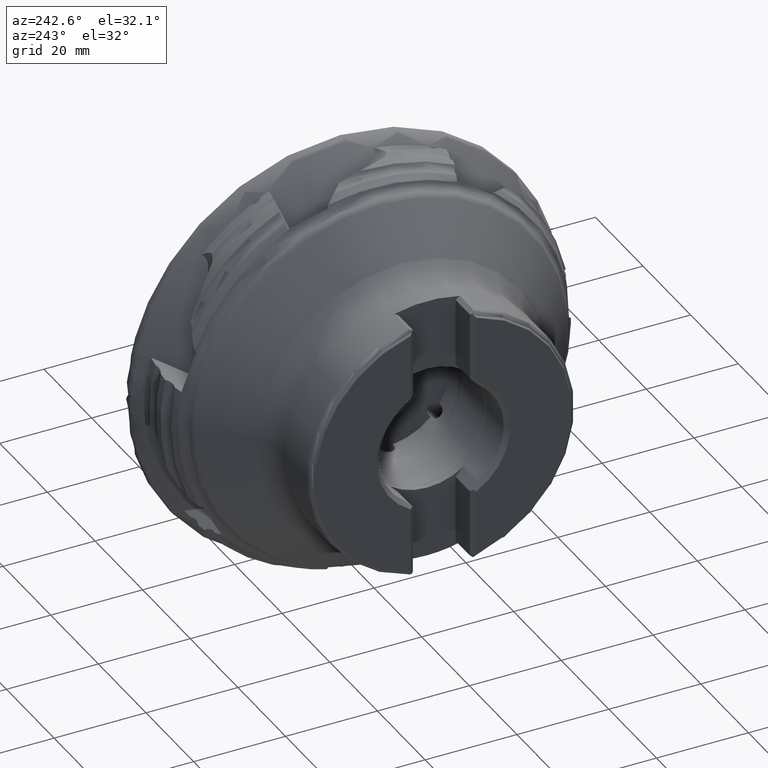
[diagram: clean part render]
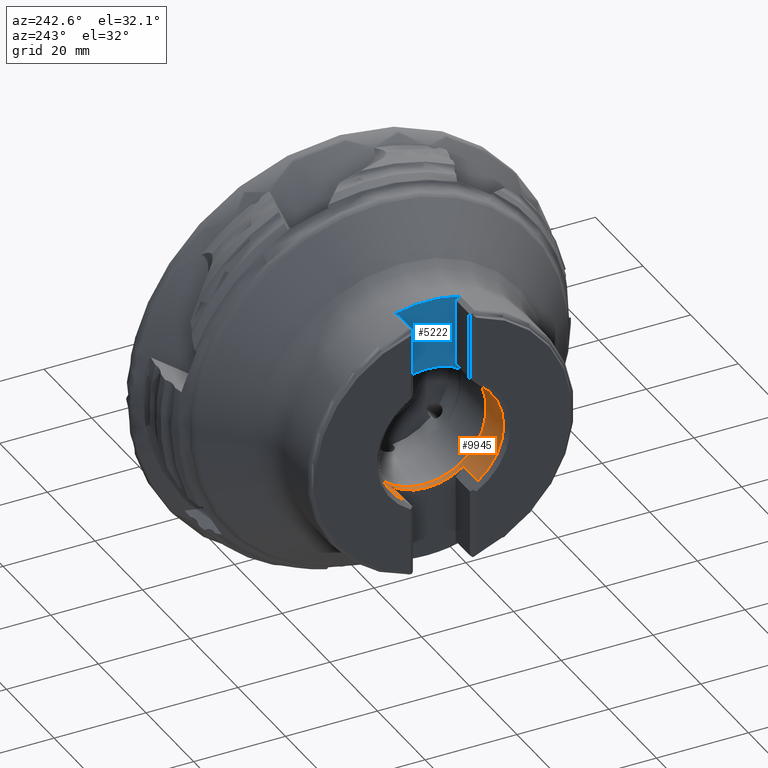
[diagram: same view with the hole feature highlighted: cylindrical wall and planar end face, labeled with their STEP entity ids]
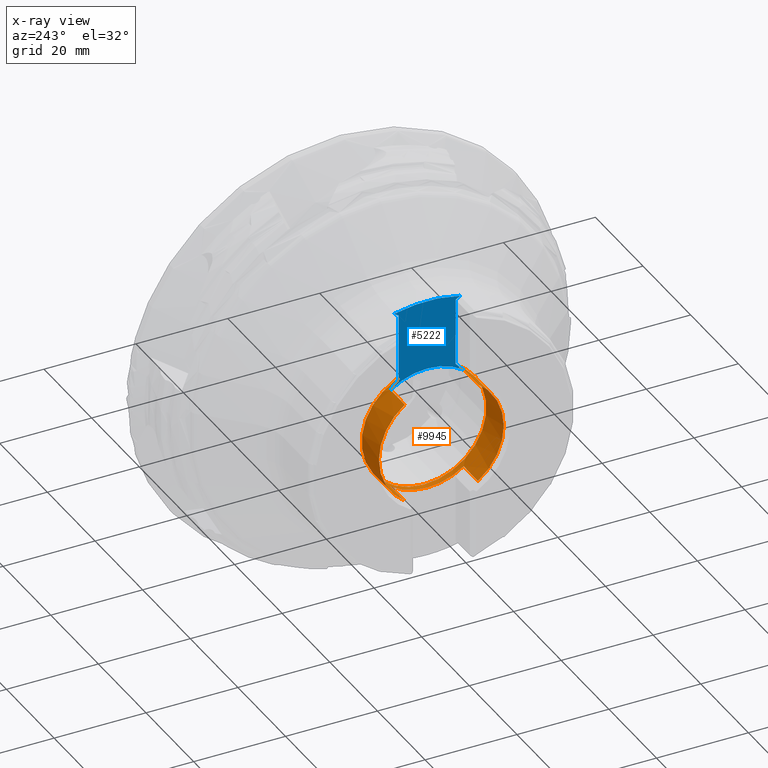
[diagram: x-ray of the same camera — body ghosted, the hole faces saturated]
A machine part, auxiliary view. The highlighted faces form one hole feature of diameter 27.15 mm: the cylindrical wall (entity #9945, orange) and its adjacent planar end face (entity #5222, blue) — they share a circular edge in the B-rep.
The next image is the same camera in x-ray (body ghosted, the hole faces saturated) — the bore reads through the body.
Wall:
#107 = DIRECTION ( 'NONE',  ( 0.0000000000000000000, 0.0000000000000000000, -1.000000000000000000 ) ) ;
#609 = CARTESIAN_POINT ( 'NONE',  ( -48.24999999999998600, 7.956204235286510800, 10.99906537694948300 ) ) ;
#644 = DIRECTION ( 'NONE',  ( 0.0000000000000000000, 0.0000000000000000000, -1.000000000000000000 ) ) ;
#766 = CARTESIAN_POINT ( 'NONE',  ( -42.24999999999998600, -7.956204235286501900, -10.99906537694948700 ) ) ;
#770 = EDGE_LOOP ( 'NONE', ( #6466, #6111, #1613, #7106, #3730, #2713, #6124, #3790 ) ) ;
#846 = FACE_OUTER_BOUND ( 'NONE', #770, .T. ) ;
#880 = CARTESIAN_POINT ( 'NONE',  ( -42.24999999999998600, -7.956204235286496600, 10.99906537694949200 ) ) ;
#911 = DIRECTION ( 'NONE',  ( 1.000000000000000000, -0.0000000000000000000, -0.0000000000000000000 ) ) ;
#1316 = AXIS2_PLACEMENT_3D ( 'NONE', #7592, #2828, #8384 ) ;
#1325 = CARTESIAN_POINT ( 'NONE',  ( -48.24999999999998600, -7.956204235286503700, -10.99906537694948700 ) ) ;
#1351 = VECTOR ( 'NONE', #4788, 1000.000000000000000 ) ;
#1359 = EDGE_CURVE ( 'NONE', #4377, #8827, #3307, .T. ) ;
#1525 = AXIS2_PLACEMENT_3D ( 'NONE', #3835, #9359, #4623 ) ;
#1613 = ORIENTED_EDGE ( 'NONE', *, *, #3371, .T. ) ;
#1872 = EDGE_CURVE ( 'NONE', #8790, #6877, #3407, .T. ) ;
#2083 = DIRECTION ( 'NONE',  ( 1.000000000000000000, -0.0000000000000000000, -0.0000000000000000000 ) ) ;
#2113 = VERTEX_POINT ( 'NONE', #880 ) ;
#2285 = CARTESIAN_POINT ( 'NONE',  ( -40.94999999999998900, 0.0000000000000000000, 0.0000000000000000000 ) ) ;
#2295 = CARTESIAN_POINT ( 'NONE',  ( -48.24999999999998600, 7.956204235286510800, -10.99906537694948300 ) ) ;
#2325 = CARTESIAN_POINT ( 'NONE',  ( -48.24999999999998600, -7.956204235286500100, 10.99906537694948800 ) ) ;
#2584 = CARTESIAN_POINT ( 'NONE',  ( -6.499539914493643200E-030, -7.956204235286489500, -10.99906537694949700 ) ) ;
#2713 = ORIENTED_EDGE ( 'NONE', *, *, #6534, .T. ) ;
#2828 = DIRECTION ( 'NONE',  ( 1.000000000000000000, -0.0000000000000000000, -0.0000000000000000000 ) ) ;
#3054 = DIRECTION ( 'NONE',  ( 0.0000000000000000000, 0.0000000000000000000, -1.000000000000000000 ) ) ;
#3072 = CIRCLE ( 'NONE', #7360, 13.57499999999999400 ) ;
#3198 = LINE ( 'NONE', #7978, #1351 ) ;
#3302 = AXIS2_PLACEMENT_3D ( 'NONE', #2285, #7843, #3054 ) ;
#3307 = CIRCLE ( 'NONE', #1525, 13.57499999999999400 ) ;
#3314 = VECTOR ( 'NONE', #8915, 1000.000000000000000 ) ;
#3371 = EDGE_CURVE ( 'NONE', #2113, #3554, #3935, .T. ) ;
#3407 = CIRCLE ( 'NONE', #1316, 13.57499999999999400 ) ;
#3554 = VERTEX_POINT ( 'NONE', #7534 ) ;
#3683 = EDGE_CURVE ( 'NONE', #7518, #7518, #6890, .T. ) ;
#3730 = ORIENTED_EDGE ( 'NONE', *, *, #1872, .F. ) ;
#3790 = ORIENTED_EDGE ( 'NONE', *, *, #8613, .T. ) ;
#3835 = CARTESIAN_POINT ( 'NONE',  ( -42.24999999999998600, 0.0000000000000000000, 0.0000000000000000000 ) ) ;
#3935 = CIRCLE ( 'NONE', #5082, 13.57499999999999400 ) ;
#3956 = CARTESIAN_POINT ( 'NONE',  ( -40.94999999999998900, 0.0000000000000000000, -13.57499999999999600 ) ) ;
#4009 = AXIS2_PLACEMENT_3D ( 'NONE', #4122, #911, #8867 ) ;
#4115 = ORIENTED_EDGE ( 'NONE', *, *, #3683, .T. ) ;
#4122 = CARTESIAN_POINT ( 'NONE',  ( 0.0000000000000000000, 0.0000000000000000000, 0.0000000000000000000 ) ) ;
#4377 = VERTEX_POINT ( 'NONE', #5781 ) ;
#4623 = DIRECTION ( 'NONE',  ( 0.0000000000000000000, 0.0000000000000000000, -1.000000000000000000 ) ) ;
#4681 = VECTOR ( 'NONE', #7251, 1000.000000000000000 ) ;
#4788 = DIRECTION ( 'NONE',  ( 1.000000000000000000, -0.0000000000000000000, -0.0000000000000000000 ) ) ;
#4792 = FACE_OUTER_BOUND ( 'NONE', #5577, .T. ) ;
#4829 = DIRECTION ( 'NONE',  ( -1.000000000000000000, -0.0000000000000000000, -0.0000000000000000000 ) ) ;
#5082 = AXIS2_PLACEMENT_3D ( 'NONE', #9577, #4829, #107 ) ;
#5381 = DIRECTION ( 'NONE',  ( 1.000000000000000000, -0.0000000000000000000, -0.0000000000000000000 ) ) ;
#5577 = EDGE_LOOP ( 'NONE', ( #4115 ) ) ;
#5781 = CARTESIAN_POINT ( 'NONE',  ( -42.24999999999998600, 7.956204235286507200, -10.99906537694948300 ) ) ;
#6111 = ORIENTED_EDGE ( 'NONE', *, *, #6995, .T. ) ;
#6124 = ORIENTED_EDGE ( 'NONE', *, *, #1359, .T. ) ;
#6293 = CARTESIAN_POINT ( 'NONE',  ( -5.261532311732945000E-030, -7.956204235286484100, 10.99906537694949700 ) ) ;
#6466 = ORIENTED_EDGE ( 'NONE', *, *, #7111, .F. ) ;
#6534 = EDGE_CURVE ( 'NONE', #8790, #4377, #3198, .T. ) ;
#6539 = LINE ( 'NONE', #9627, #4681 ) ;
#6870 = VERTEX_POINT ( 'NONE', #1325 ) ;
#6877 = VERTEX_POINT ( 'NONE', #609 ) ;
#6890 = CIRCLE ( 'NONE', #3302, 13.57499999999999600 ) ;
#6995 = EDGE_CURVE ( 'NONE', #8810, #2113, #7294, .T. ) ;
#7060 = VECTOR ( 'NONE', #2083, 1000.000000000000000 ) ;
#7106 = ORIENTED_EDGE ( 'NONE', *, *, #9579, .T. ) ;
#7111 = EDGE_CURVE ( 'NONE', #8810, #6870, #3072, .T. ) ;
#7251 = DIRECTION ( 'NONE',  ( -1.000000000000000000, 0.0000000000000000000, 0.0000000000000000000 ) ) ;
#7294 = LINE ( 'NONE', #6293, #7060 ) ;
#7360 = AXIS2_PLACEMENT_3D ( 'NONE', #10140, #5381, #644 ) ;
#7518 = VERTEX_POINT ( 'NONE', #3956 ) ;
#7534 = CARTESIAN_POINT ( 'NONE',  ( -42.24999999999998600, 7.956204235286507200, 10.99906537694948300 ) ) ;
#7592 = CARTESIAN_POINT ( 'NONE',  ( -48.24999999999998600, 0.0000000000000000000, 0.0000000000000000000 ) ) ;
#7843 = DIRECTION ( 'NONE',  ( 1.000000000000000000, -0.0000000000000000000, -0.0000000000000000000 ) ) ;
#7978 = CARTESIAN_POINT ( 'NONE',  ( 0.0000000000000000000, 7.956204235286507200, -10.99906537694948300 ) ) ;
#8384 = DIRECTION ( 'NONE',  ( 0.0000000000000000000, 0.0000000000000000000, -1.000000000000000000 ) ) ;
#8613 = EDGE_CURVE ( 'NONE', #8827, #6870, #9644, .T. ) ;
#8771 = CYLINDRICAL_SURFACE ( 'NONE', #4009, 13.57499999999999400 ) ;
#8790 = VERTEX_POINT ( 'NONE', #2295 ) ;
#8810 = VERTEX_POINT ( 'NONE', #2325 ) ;
#8827 = VERTEX_POINT ( 'NONE', #766 ) ;
#8867 = DIRECTION ( 'NONE',  ( 0.0000000000000000000, 0.0000000000000000000, -1.000000000000000000 ) ) ;
#8915 = DIRECTION ( 'NONE',  ( -1.000000000000000000, 0.0000000000000000000, 0.0000000000000000000 ) ) ;
#9359 = DIRECTION ( 'NONE',  ( -1.000000000000000000, -0.0000000000000000000, -0.0000000000000000000 ) ) ;
#9577 = CARTESIAN_POINT ( 'NONE',  ( -42.24999999999998600, 0.0000000000000000000, 0.0000000000000000000 ) ) ;
#9579 = EDGE_CURVE ( 'NONE', #3554, #6877, #6539, .T. ) ;
#9627 = CARTESIAN_POINT ( 'NONE',  ( 0.0000000000000000000, 7.956204235286507200, 10.99906537694948300 ) ) ;
#9644 = LINE ( 'NONE', #2584, #3314 ) ;
#9945 = ADVANCED_FACE ( 'NONE', ( #846, #4792 ), #8771, .F. ) ;
#10140 = CARTESIAN_POINT ( 'NONE',  ( -48.24999999999998600, 0.0000000000000000000, 0.0000000000000000000 ) ) ;
End face:
#87 = ORIENTED_EDGE ( 'NONE', *, *, #4147, .T. ) ;
#107 = DIRECTION ( 'NONE',  ( 0.0000000000000000000, 0.0000000000000000000, -1.000000000000000000 ) ) ;
#123 = LINE ( 'NONE', #3905, #8277 ) ;
#135 = VECTOR ( 'NONE', #1205, 1000.000000000000000 ) ;
#181 = ORIENTED_EDGE ( 'NONE', *, *, #1099, .T. ) ;
#225 = ORIENTED_EDGE ( 'NONE', *, *, #1297, .T. ) ;
#243 = LINE ( 'NONE', #873, #8430 ) ;
#251 = FACE_OUTER_BOUND ( 'NONE', #7440, .T. ) ;
#633 = VECTOR ( 'NONE', #4098, 1000.000000000000000 ) ;
#804 = CARTESIAN_POINT ( 'NONE',  ( -42.24999999999998600, 6.199999999999994000, -35.00000000000000000 ) ) ;
#873 = CARTESIAN_POINT ( 'NONE',  ( -42.24999999999998600, 30.97830975848955900, 3.662544862966750500 ) ) ;
#880 = CARTESIAN_POINT ( 'NONE',  ( -42.24999999999998600, -7.956204235286496600, 10.99906537694949200 ) ) ;
#1099 = EDGE_CURVE ( 'NONE', #2113, #2802, #123, .T. ) ;
#1159 = CARTESIAN_POINT ( 'NONE',  ( -42.24999999999998600, -6.200000000000003700, 12.87078501993768700 ) ) ;
#1205 = DIRECTION ( 'NONE',  ( -0.0000000000000000000, -0.0000000000000000000, 1.000000000000000000 ) ) ;
#1215 = ORIENTED_EDGE ( 'NONE', *, *, #5859, .T. ) ;
#1297 = EDGE_CURVE ( 'NONE', #10158, #7201, #9396, .T. ) ;
#1318 = CARTESIAN_POINT ( 'NONE',  ( -42.24999999999998600, 6.199999999999994000, 12.87078501993769900 ) ) ;
#1471 = CARTESIAN_POINT ( 'NONE',  ( -42.24999999999998600, 30.08690900907819100, -12.58730003887088800 ) ) ;
#1608 = DIRECTION ( 'NONE',  ( 1.000000000000000000, 0.0000000000000000000, 0.0000000000000000000 ) ) ;
#1758 = CARTESIAN_POINT ( 'NONE',  ( -42.24999999999998600, -6.200000000000003700, 27.48962812295473100 ) ) ;
#2074 = EDGE_CURVE ( 'NONE', #7230, #10158, #2676, .T. ) ;
#2108 = CARTESIAN_POINT ( 'NONE',  ( -42.24999999999998600, 7.157023391835952700, 28.10297166081752400 ) ) ;
#2113 = VERTEX_POINT ( 'NONE', #880 ) ;
#2191 = AXIS2_PLACEMENT_3D ( 'NONE', #7213, #2470, #8018 ) ;
#2314 = VECTOR ( 'NONE', #7011, 1000.000000000000000 ) ;
#2323 = AXIS2_PLACEMENT_3D ( 'NONE', #804, #1608, #7140 ) ;
#2470 = DIRECTION ( 'NONE',  ( -1.000000000000000000, -0.0000000000000000000, -0.0000000000000000000 ) ) ;
#2676 = CIRCLE ( 'NONE', #2191, 28.99999999999999600 ) ;
#2786 = CARTESIAN_POINT ( 'NONE',  ( -42.24999999999998600, -6.200000000000003700, -35.00000000000000000 ) ) ;
#2802 = VERTEX_POINT ( 'NONE', #1159 ) ;
#3202 = ORIENTED_EDGE ( 'NONE', *, *, #3371, .F. ) ;
#3371 = EDGE_CURVE ( 'NONE', #2113, #3554, #3935, .T. ) ;
#3453 = VERTEX_POINT ( 'NONE', #1758 ) ;
#3554 = VERTEX_POINT ( 'NONE', #7534 ) ;
#3724 = CARTESIAN_POINT ( 'NONE',  ( -42.24999999999998600, -22.18856994132706400, 9.295771973549367600 ) ) ;
#3905 = CARTESIAN_POINT ( 'NONE',  ( -42.24999999999998600, -24.28133303195034600, -6.399858751053911600 ) ) ;
#3935 = CIRCLE ( 'NONE', #5082, 13.57499999999999400 ) ;
#4098 = DIRECTION ( 'NONE',  ( -0.0000000000000000000, -0.0000000000000000000, 1.000000000000000000 ) ) ;
#4147 = EDGE_CURVE ( 'NONE', #5074, #3554, #8639, .T. ) ;
#4582 = LINE ( 'NONE', #9594, #633 ) ;
#4829 = DIRECTION ( 'NONE',  ( -1.000000000000000000, -0.0000000000000000000, -0.0000000000000000000 ) ) ;
#4846 = ORIENTED_EDGE ( 'NONE', *, *, #7631, .T. ) ;
#4850 = CARTESIAN_POINT ( 'NONE',  ( -42.24999999999998600, 6.199999999999994000, 27.48962812295470900 ) ) ;
#5074 = VERTEX_POINT ( 'NONE', #1318 ) ;
#5082 = AXIS2_PLACEMENT_3D ( 'NONE', #9577, #4829, #107 ) ;
#5086 = ORIENTED_EDGE ( 'NONE', *, *, #7216, .F. ) ;
#5222 = ADVANCED_FACE ( 'NONE', ( #251 ), #5548, .F. ) ;
#5548 = PLANE ( 'NONE',  #2323 ) ;
#5859 = EDGE_CURVE ( 'NONE', #2802, #3453, #8805, .T. ) ;
#6418 = DIRECTION ( 'NONE',  ( -0.0000000000000000000, -0.8419322925598232700, 0.5395831861214359600 ) ) ;
#6493 = CARTESIAN_POINT ( 'NONE',  ( -42.24999999999998600, -7.157023391835934900, 28.10297166081753100 ) ) ;
#7011 = DIRECTION ( 'NONE',  ( 0.0000000000000000000, 0.6842452857409364600, -0.7292519379071298300 ) ) ;
#7140 = DIRECTION ( 'NONE',  ( 0.0000000000000000000, 0.0000000000000000000, -1.000000000000000000 ) ) ;
#7201 = VERTEX_POINT ( 'NONE', #4850 ) ;
#7213 = CARTESIAN_POINT ( 'NONE',  ( -42.24999999999998600, 0.0000000000000000000, 0.0000000000000000000 ) ) ;
#7216 = EDGE_CURVE ( 'NONE', #5074, #7201, #4582, .T. ) ;
#7230 = VERTEX_POINT ( 'NONE', #6493 ) ;
#7440 = EDGE_LOOP ( 'NONE', ( #9478, #225, #5086, #87, #3202, #181, #1215, #4846 ) ) ;
#7533 = VECTOR ( 'NONE', #9245, 1000.000000000000000 ) ;
#7534 = CARTESIAN_POINT ( 'NONE',  ( -42.24999999999998600, 7.956204235286507200, 10.99906537694948300 ) ) ;
#7631 = EDGE_CURVE ( 'NONE', #3453, #7230, #243, .T. ) ;
#8018 = DIRECTION ( 'NONE',  ( 0.0000000000000000000, 3.552713678800500900E-015, -1.000000000000000000 ) ) ;
#8277 = VECTOR ( 'NONE', #9435, 1000.000000000000100 ) ;
#8430 = VECTOR ( 'NONE', #6418, 999.9999999999998900 ) ;
#8639 = LINE ( 'NONE', #1471, #2314 ) ;
#8805 = LINE ( 'NONE', #2786, #135 ) ;
#9245 = DIRECTION ( 'NONE',  ( 0.0000000000000000000, -0.8419322925598232700, -0.5395831861214359600 ) ) ;
#9396 = LINE ( 'NONE', #3724, #7533 ) ;
#9435 = DIRECTION ( 'NONE',  ( -0.0000000000000000000, 0.6842452857409375700, 0.7292519379071286100 ) ) ;
#9478 = ORIENTED_EDGE ( 'NONE', *, *, #2074, .T. ) ;
#9577 = CARTESIAN_POINT ( 'NONE',  ( -42.24999999999998600, 0.0000000000000000000, 0.0000000000000000000 ) ) ;
#9594 = CARTESIAN_POINT ( 'NONE',  ( -42.24999999999998600, 6.199999999999994000, -35.00000000000000000 ) ) ;
#10158 = VERTEX_POINT ( 'NONE', #2108 ) ;